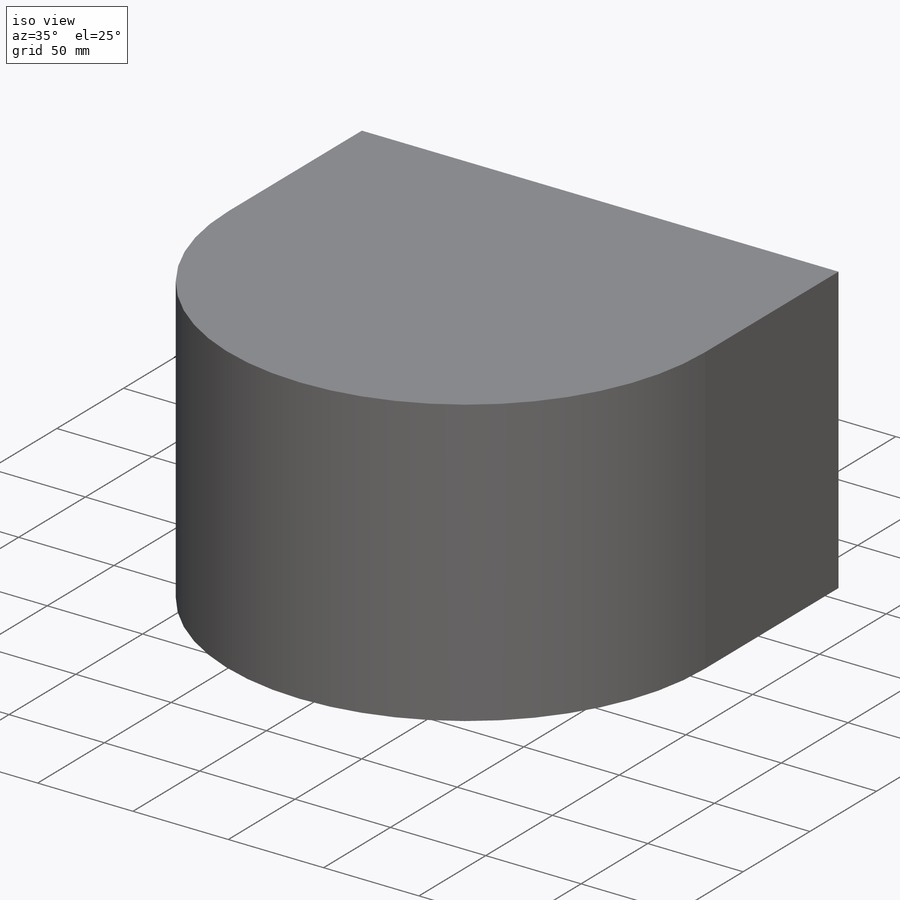
[diagram: iso view]
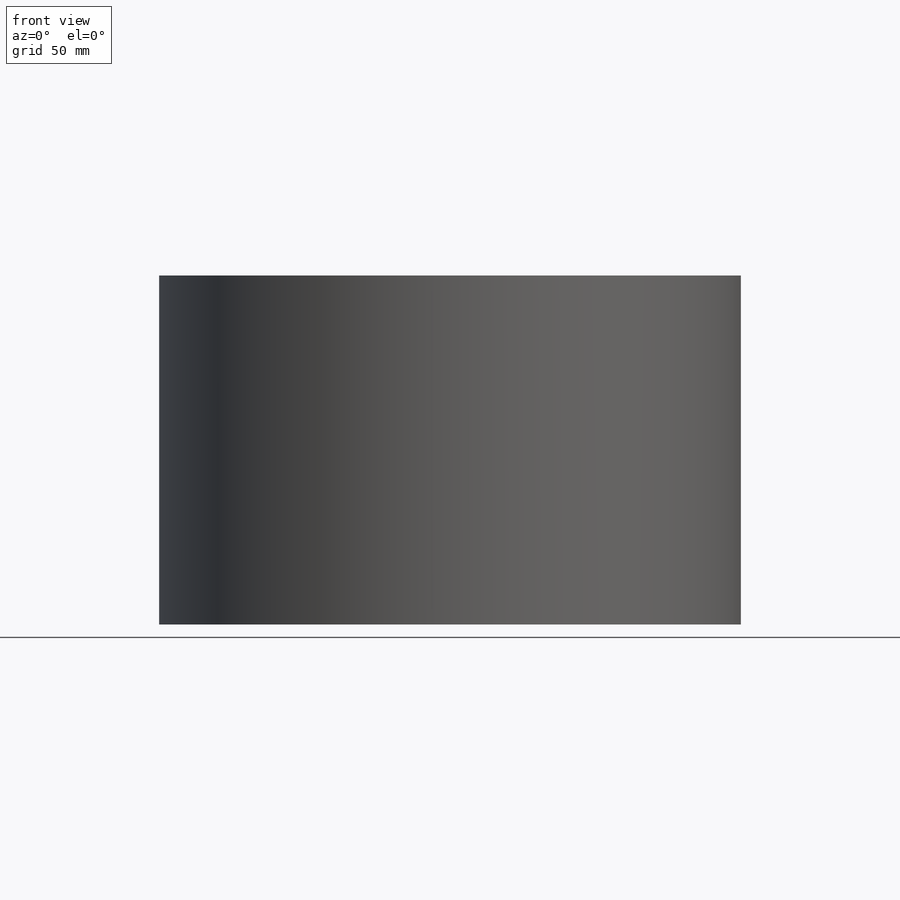
[diagram: front view]
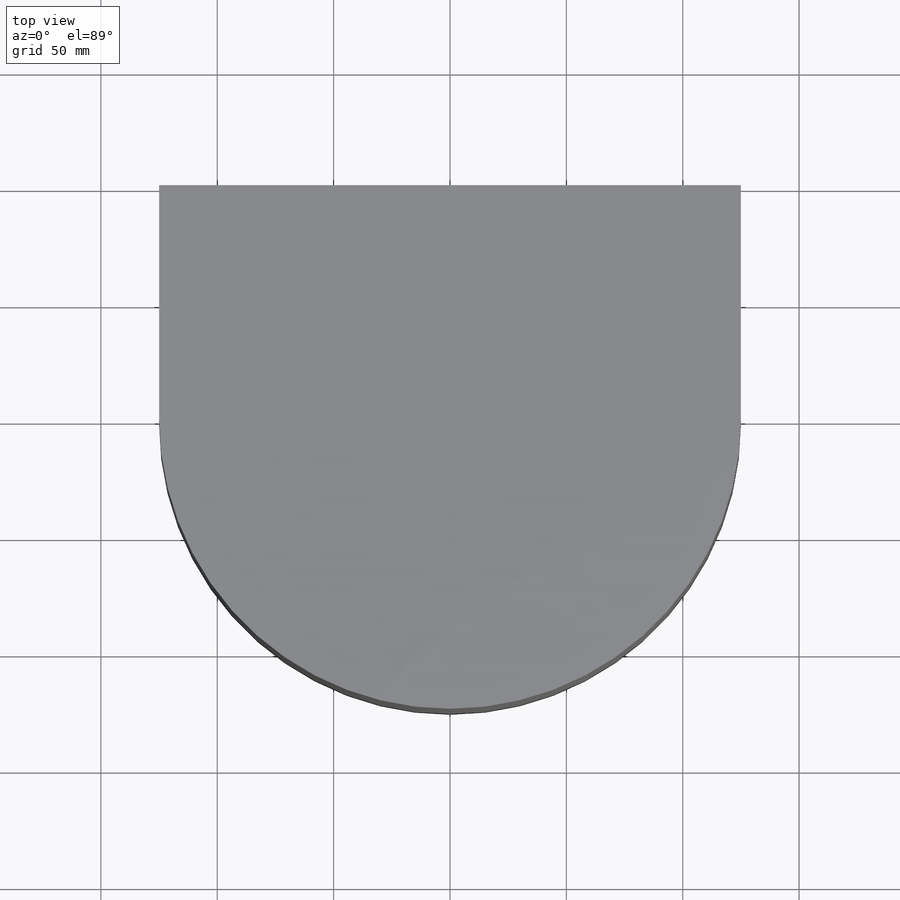
[diagram: top view]
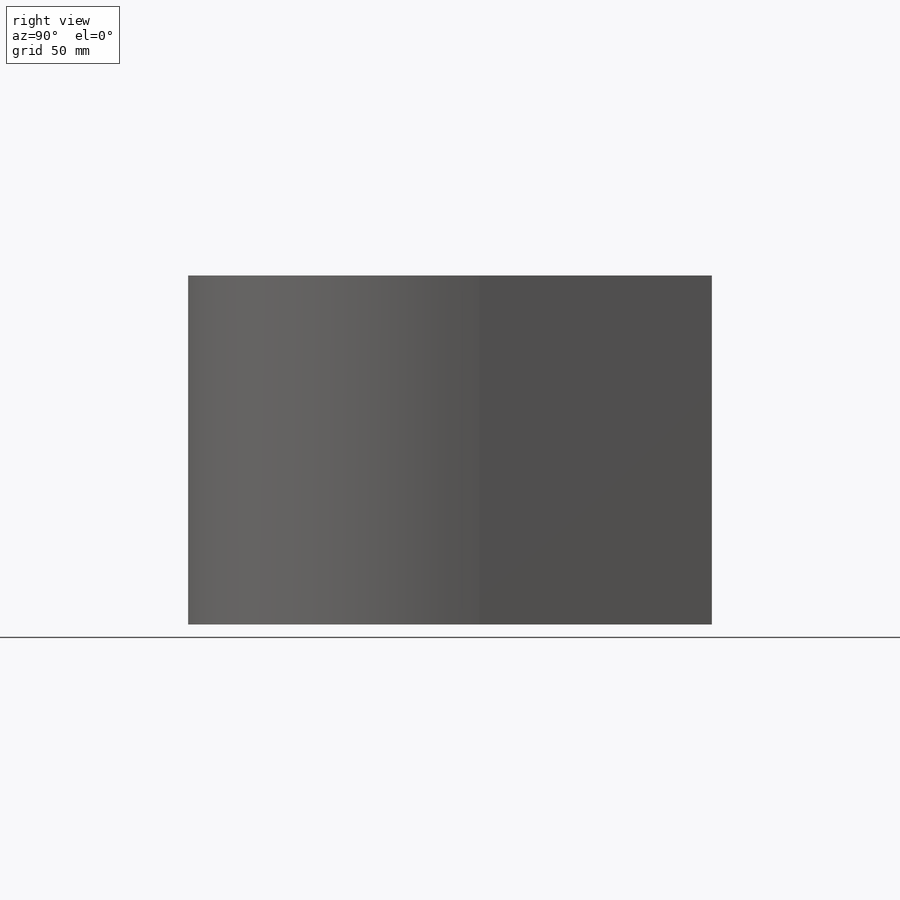
[diagram: right view]
SOLIDWORKS PART (.sldprt)
format: sldprt  version: not decoded by parser v0  size: 161,792 bytes
history: native  units: mm
features: sketch x3, extrude x2, material x1, cut_extrude x1 (+11 scaffold rows collapsed)
feature tree (18):
  scaffold x11  (default folders/planes/origin — collapsed)
  material  "Material <not specified>"
  sketch  "Sketch3"  dims[c1.D1=250.0mm c1.D2=100.0mm c1.D3=30.0mm c1.D4=0.0mm c1.D5=200.0mm c2.D4=200.0mm]
  extrude  "Boss-Extrude1"  Depth=100mm
  sketch  "Sketch4"  dims[D1=0.0mm]
  extrude  "Boss-Extrude2"  Depth=50mm
  sketch  "Sketch5"  dims[D1=12.0mm D2=30.0mm D3=45.0mm]
  cut_extrude  "Cut-Extrude1"  Depth=20mm
decode coverage: 6 of 6 modeling features carry decoded parameters
note: suppression state not decoded; provenance and decode notes live in map.json
